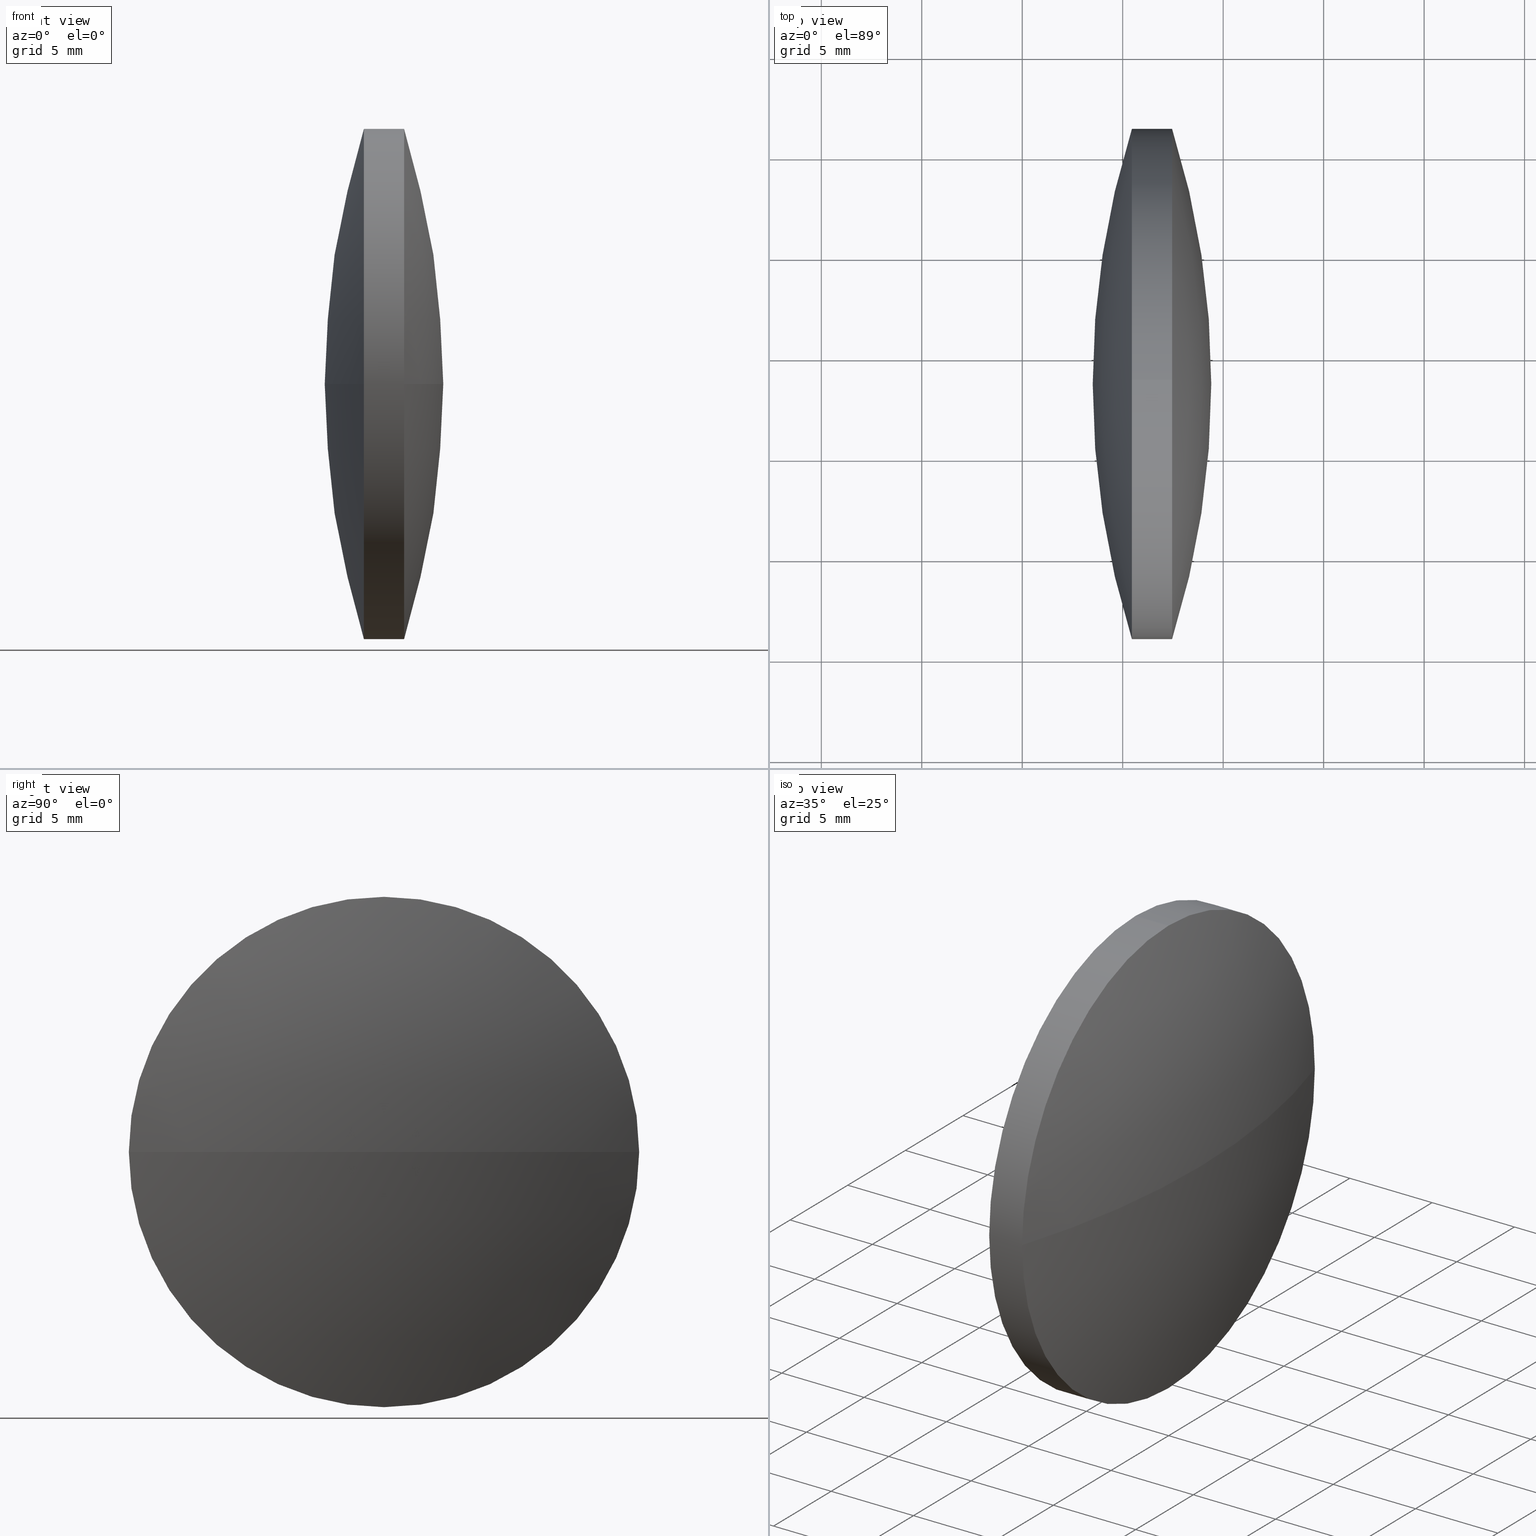
[diagram: canonical four-view strip — front | top / right | iso, engineering-drawing reading convention]
A machine part, canonical four-view strip (front | top / right | iso — engineering-drawing reading convention). The complete STEP part file that produces these views, byte-faithful:
ISO-10303-21;
HEADER;
FILE_DESCRIPTION (( 'STEP AP203' ),
    '1' );
FILE_NAME ('110140.STEP',
    '2019-07-08T09:12:02',
    ( '' ),
    ( '' ),
    'SwSTEP 2.0',
    'SolidWorks 2016',
    '' );
FILE_SCHEMA (( 'CONFIG_CONTROL_DESIGN' ));
ENDSEC;

DATA;
#1 = PERSON_AND_ORGANIZATION ( #110, #10 ) ;
#2 = PRODUCT_RELATED_PRODUCT_CATEGORY ( 'detail', '', ( #84 ) ) ;
#3 = COORDINATED_UNIVERSAL_TIME_OFFSET ( 8, 0, .AHEAD. ) ;
#4 = APPROVAL ( #77, 'δָ��' ) ;
#5 = DIRECTION ( 'NONE',  ( -0.0000000000000000000, 0.0000000000000000000, -1.000000000000000000 ) ) ;
#6 = VERTEX_POINT ( 'NONE', #331 ) ;
#7 = DIRECTION ( 'NONE',  ( -1.000000000000000000, -0.0000000000000000000, -0.0000000000000000000 ) ) ;
#8 = LOCAL_TIME ( 17, 12, 2.000000000000000000, #275 ) ;
#9 = MECHANICAL_CONTEXT ( 'NONE', #199, 'mechanical' ) ;
#10 = ORGANIZATION ( 'δָ��', 'δָ��', '' ) ;
#11 = APPROVAL ( #86, 'δָ��' ) ;
#12 = AXIS2_PLACEMENT_3D ( 'NONE', #31, #218, #34 ) ;
#13 = CARTESIAN_POINT ( 'NONE',  ( 87.45786520323396500, 48.61611302318478100, 0.0000000000000000000 ) ) ;
#14 = CARTESIAN_POINT ( 'NONE',  ( 85.45852234609111500, 35.91611302318477100, -1.555301434917135700E-015 ) ) ;
#15 = LOCAL_TIME ( 17, 12, 2.000000000000000000, #59 ) ;
#16 = CIRCLE ( 'NONE', #179, 12.69999999999999600 ) ;
#17 = DIRECTION ( 'NONE',  ( 0.0000000000000000000, 0.0000000000000000000, 1.000000000000000000 ) ) ;
#18 = CC_DESIGN_APPROVAL ( #152, ( #228 ) ) ;
#19 = LOCAL_TIME ( 17, 12, 2.000000000000000000, #51 ) ;
#20 = DIRECTION ( 'NONE',  ( -1.000000000000000000, -0.0000000000000000000, -0.0000000000000000000 ) ) ;
#21 = SPHERICAL_SURFACE ( 'NONE', #81, 42.32476693287840400 ) ;
#22 = ORIENTED_EDGE ( 'NONE', *, *, #204, .F. ) ;
#23 = PERSON_AND_ORGANIZATION_ROLE ( 'creator' ) ;
#24 = PERSON_AND_ORGANIZATION ( #110, #10 ) ;
#25 = PERSON_AND_ORGANIZATION ( #110, #10 ) ;
#26 = APPLICATION_CONTEXT ( 'configuration controlled 3d designs of mechanical parts and assemblies' ) ;
#27 = PRODUCT ( '110140', '110140', '', ( #9 ) ) ;
#28 = CC_DESIGN_APPROVAL ( #4, ( #66 ) ) ;
#29 = ADVANCED_FACE ( 'NONE', ( #241 ), #151, .T. ) ;
#30 = AXIS2_PLACEMENT_3D ( 'NONE', #170, #125, #259 ) ;
#31 = CARTESIAN_POINT ( 'NONE',  ( 125.8329684218269200, 48.61611302318474500, 0.0000000000000000000 ) ) ;
#32 = SPHERICAL_SURFACE ( 'NONE', #158, 42.32476693287866000 ) ;
#33 = CC_DESIGN_DATE_AND_TIME_ASSIGNMENT ( #195, #233, ( #120 ) ) ;
#34 = DIRECTION ( 'NONE',  ( 1.000000000000000000, 0.0000000000000000000, 0.0000000000000000000 ) ) ;
#35 = APPLICATION_PROTOCOL_DEFINITION ( 'international standard', 'config_control_design', 1994, #199 ) ;
#36 = ORIENTED_EDGE ( 'NONE', *, *, #184, .F. ) ;
#37 = AXIS2_PLACEMENT_3D ( 'NONE', #197, #43, #317 ) ;
#38 =( NAMED_UNIT ( * ) SI_UNIT ( $, .STERADIAN. ) SOLID_ANGLE_UNIT ( ) );
#39 = CARTESIAN_POINT ( 'NONE',  ( 79.30540135083715800, 48.61611302318478100, 0.0000000000000000000 ) ) ;
#40 = DATE_AND_TIME ( #304, #99 ) ;
#41 = CARTESIAN_POINT ( 'NONE',  ( 85.45852234609111500, 48.61611302318478100, 0.0000000000000000000 ) ) ;
#42 = DIRECTION ( 'NONE',  ( 0.0000000000000000000, 0.0000000000000000000, 1.000000000000000000 ) ) ;
#43 = DIRECTION ( 'NONE',  ( -1.000000000000000000, -0.0000000000000000000, -0.0000000000000000000 ) ) ;
#44 = LOCAL_TIME ( 17, 12, 2.000000000000000000, #136 ) ;
#45 = PERSON_AND_ORGANIZATION_ROLE ( 'creator' ) ;
#46 = CC_DESIGN_APPROVAL ( #11, ( #302 ) ) ;
#47 = APPROVAL_DATE_TIME ( #40, #60 ) ;
#48 = CIRCLE ( 'NONE', #223, 12.69999999999999600 ) ;
#49 = AXIS2_PLACEMENT_3D ( 'NONE', #191, #255, #229 ) ;
#50 = VERTEX_POINT ( 'NONE', #161 ) ;
#51 = COORDINATED_UNIVERSAL_TIME_OFFSET ( 8, 0, .AHEAD. ) ;
#52 = LOCAL_TIME ( 17, 12, 2.000000000000000000, #341 ) ;
#53 = CARTESIAN_POINT ( 'NONE',  ( 0.0000000000000000000, 0.0000000000000000000, 0.0000000000000000000 ) ) ;
#54 = ADVANCED_FACE ( 'NONE', ( #126 ), #308, .T. ) ;
#55 = CIRCLE ( 'NONE', #140, 12.69999999999999600 ) ;
#56 = PERSON_AND_ORGANIZATION ( #110, #10 ) ;
#57 = EDGE_LOOP ( 'NONE', ( #93, #127, #115, #148, #237, #267 ) ) ;
#58 = DIRECTION ( 'NONE',  ( 0.0000000000000000000, 1.000000000000000000, 0.0000000000000000000 ) ) ;
#59 = COORDINATED_UNIVERSAL_TIME_OFFSET ( 8, 0, .AHEAD. ) ;
#60 = APPROVAL ( #130, 'δָ��' ) ;
#61 = EDGE_LOOP ( 'NONE', ( #210, #290, #232, #212 ) ) ;
#62 = DIRECTION ( 'NONE',  ( 1.000000000000000000, 0.0000000000000000000, 0.0000000000000000000 ) ) ;
#63 = PERSON_AND_ORGANIZATION ( #110, #10 ) ;
#64 = FACE_OUTER_BOUND ( 'NONE', #129, .T. ) ;
#65 = VERTEX_POINT ( 'NONE', #246 ) ;
#66 = PRODUCT_DEFINITION_FORMATION_WITH_SPECIFIED_SOURCE ( '�κ�', '', #84, .NOT_KNOWN. ) ;
#67 = DIRECTION ( 'NONE',  ( -1.000000000000000000, -0.0000000000000000000, -0.0000000000000000000 ) ) ;
#68 = DIRECTION ( 'NONE',  ( 0.0000000000000000000, 1.000000000000000000, 1.224646799147353500E-016 ) ) ;
#69 = APPLICATION_PROTOCOL_DEFINITION ( 'international standard', 'config_control_design', 1994, #149 ) ;
#70 = CALENDAR_DATE ( 2019, 8, 7 ) ;
#71 = APPLICATION_CONTEXT ( 'configuration controlled 3d designs of mechanical parts and assemblies' ) ;
#72 = EDGE_CURVE ( 'NONE', #65, #101, #192, .T. ) ;
#73 = PRODUCT_DEFINITION_SHAPE ( 'NONE', 'NONE',  #228 ) ;
#74 = VERTEX_POINT ( 'NONE', #14 ) ;
#75 = CARTESIAN_POINT ( 'NONE',  ( 125.8329684218269200, 48.61611302318474500, 0.0000000000000000000 ) ) ;
#76 = APPROVAL_PERSON_ORGANIZATION ( #260, #340, #175 ) ;
#77 = APPROVAL_STATUS ( 'not_yet_approved' ) ;
#78 = CC_DESIGN_DATE_AND_TIME_ASSIGNMENT ( #291, #154, ( #332 ) ) ;
#79 = SECURITY_CLASSIFICATION_LEVEL ( 'unclassified' ) ;
#80 = CALENDAR_DATE ( 2019, 8, 7 ) ;
#81 = AXIS2_PLACEMENT_3D ( 'NONE', #250, #257, #133 ) ;
#82 = CLOSED_SHELL ( 'NONE', ( #157, #327, #182, #242, #29, #54 ) ) ;
#83 =( LENGTH_UNIT ( ) NAMED_UNIT ( * ) SI_UNIT ( .MILLI., .METRE. ) );
#84 = PRODUCT ( '110140', '110140', '', ( #254 ) ) ;
#85 = ORIENTED_EDGE ( 'NONE', *, *, #226, .T. ) ;
#86 = APPROVAL_STATUS ( 'not_yet_approved' ) ;
#87 = LOCAL_TIME ( 17, 12, 2.000000000000000000, #280 ) ;
#88 = PRODUCT_DEFINITION_SHAPE ( 'NONE', 'NONE',  #120 ) ;
#89 = FACE_OUTER_BOUND ( 'NONE', #90, .T. ) ;
#90 = EDGE_LOOP ( 'NONE', ( #216, #278, #22, #183 ) ) ;
#91 = CIRCLE ( 'NONE', #12, 42.32476693287864600 ) ;
#92 = CARTESIAN_POINT ( 'NONE',  ( 85.45852234609111500, 48.61611302318478100, 12.69999999999999600 ) ) ;
#93 = ORIENTED_EDGE ( 'NONE', *, *, #286, .F. ) ;
#94 = CARTESIAN_POINT ( 'NONE',  ( 87.45786520323396500, 61.31611302318477600, 0.0000000000000000000 ) ) ;
#95 = DIRECTION ( 'NONE',  ( 0.0000000000000000000, 0.0000000000000000000, 1.000000000000000000 ) ) ;
#96 = APPROVAL_PERSON_ORGANIZATION ( #214, #293, #289 ) ;
#97 = SHAPE_DEFINITION_REPRESENTATION ( #73, #206 ) ;
#98 = PERSON_AND_ORGANIZATION_ROLE ( 'design_owner' ) ;
#99 = LOCAL_TIME ( 17, 12, 2.000000000000000000, #239 ) ;
#100 = CYLINDRICAL_SURFACE ( 'NONE', #318, 12.69999999999999600 ) ;
#101 = VERTEX_POINT ( 'NONE', #94 ) ;
#102 = PERSON_AND_ORGANIZATION_ROLE ( 'classification_officer' ) ;
#103 = COORDINATED_UNIVERSAL_TIME_OFFSET ( 8, 0, .AHEAD. ) ;
#104 = APPLICATION_PROTOCOL_DEFINITION ( 'international standard', 'config_control_design', 1994, #26 ) ;
#105 = CC_DESIGN_APPROVAL ( #293, ( #244 ) ) ;
#106 = APPROVAL_PERSON_ORGANIZATION ( #311, #60, #324 ) ;
#107 = ORIENTED_EDGE ( 'NONE', *, *, #131, .F. ) ;
#108 = COORDINATED_UNIVERSAL_TIME_OFFSET ( 8, 0, .AHEAD. ) ;
#109 = EDGE_CURVE ( 'NONE', #224, #193, #55, .T. ) ;
#110 = PERSON ( 'δָ��', 'δָ��', 'δָ��', ('δָ��'), ('δָ��'), ('δָ��') ) ;
#111 =( NAMED_UNIT ( * ) PLANE_ANGLE_UNIT ( ) SI_UNIT ( $, .RADIAN. ) );
#112 = CC_DESIGN_PERSON_AND_ORGANIZATION_ASSIGNMENT ( #123, #264, ( #66 ) ) ;
#113 = CARTESIAN_POINT ( 'NONE',  ( 87.45786520323396500, 48.61611302318478100, 0.0000000000000000000 ) ) ;
#114 = PERSON_AND_ORGANIZATION ( #110, #10 ) ;
#115 = ORIENTED_EDGE ( 'NONE', *, *, #219, .T. ) ;
#116 = CARTESIAN_POINT ( 'NONE',  ( 85.45852234609111500, 48.61611302318478100, -12.69999999999999600 ) ) ;
#117 = CARTESIAN_POINT ( 'NONE',  ( 85.45852234609111500, 48.61611302318478100, 0.0000000000000000000 ) ) ;
#118 = PERSON_AND_ORGANIZATION ( #110, #10 ) ;
#119 = DESIGN_CONTEXT ( 'detailed design', #71, 'design' ) ;
#120 = PRODUCT_DEFINITION ( 'δ֪', '', #66, #173 ) ;
#121 = DIRECTION ( 'NONE',  ( -1.000000000000000000, -0.0000000000000000000, -0.0000000000000000000 ) ) ;
#122 = EDGE_CURVE ( 'NONE', #187, #224, #16, .T. ) ;
#123 = PERSON_AND_ORGANIZATION ( #110, #10 ) ;
#124 = PERSON_AND_ORGANIZATION_ROLE ( 'design_owner' ) ;
#125 = DIRECTION ( 'NONE',  ( -0.0000000000000000000, 0.0000000000000000000, 1.000000000000000000 ) ) ;
#126 = FACE_OUTER_BOUND ( 'NONE', #57, .T. ) ;
#127 = ORIENTED_EDGE ( 'NONE', *, *, #204, .T. ) ;
#128 = LOCAL_TIME ( 17, 12, 2.000000000000000000, #103 ) ;
#129 = EDGE_LOOP ( 'NONE', ( #338, #306, #137, #285 ) ) ;
#130 = APPROVAL_STATUS ( 'not_yet_approved' ) ;
#131 = EDGE_CURVE ( 'NONE', #135, #50, #150, .T. ) ;
#132 = PERSON_AND_ORGANIZATION ( #110, #10 ) ;
#133 = DIRECTION ( 'NONE',  ( 0.0000000000000000000, 1.000000000000000000, 0.0000000000000000000 ) ) ;
#134 = CARTESIAN_POINT ( 'NONE',  ( 85.45852234609111500, 61.31611302318476200, 0.0000000000000000000 ) ) ;
#135 = VERTEX_POINT ( 'NONE', #144 ) ;
#136 = COORDINATED_UNIVERSAL_TIME_OFFSET ( 8, 0, .AHEAD. ) ;
#137 = ORIENTED_EDGE ( 'NONE', *, *, #122, .T. ) ;
#138 = AXIS2_PLACEMENT_3D ( 'NONE', #213, #276, #62 ) ;
#139 = CALENDAR_DATE ( 2019, 8, 7 ) ;
#140 = AXIS2_PLACEMENT_3D ( 'NONE', #117, #252, #168 ) ;
#141 = ORIENTED_EDGE ( 'NONE', *, *, #219, .F. ) ;
#142 = DIRECTION ( 'NONE',  ( -1.000000000000000000, -0.0000000000000000000, -0.0000000000000000000 ) ) ;
#143 = DATE_AND_TIME ( #70, #87 ) ;
#144 = CARTESIAN_POINT ( 'NONE',  ( 89.40818606037683500, 48.61611302318478100, 0.0000000000000000000 ) ) ;
#145 = SPHERICAL_SURFACE ( 'NONE', #49, 42.32476693287866000 ) ;
#146 = DIRECTION ( 'NONE',  ( -1.000000000000000000, -0.0000000000000000000, -0.0000000000000000000 ) ) ;
#147 = AXIS2_PLACEMENT_3D ( 'NONE', #53, #42, #172 ) ;
#148 = ORIENTED_EDGE ( 'NONE', *, *, #184, .T. ) ;
#149 = APPLICATION_CONTEXT ( 'configuration controlled 3d designs of mechanical parts and assemblies' ) ;
#150 = CIRCLE ( 'NONE', #236, 42.32476693287840400 ) ;
#151 = SPHERICAL_SURFACE ( 'NONE', #198, 42.32476693287840400 ) ;
#152 = APPROVAL ( #339, 'δָ��' ) ;
#153 = APPROVAL_STATUS ( 'not_yet_approved' ) ;
#154 = DATE_TIME_ROLE ( 'classification_date' ) ;
#155 = DATE_AND_TIME ( #201, #128 ) ;
#156 = CC_DESIGN_PERSON_AND_ORGANIZATION_ASSIGNMENT ( #114, #319, ( #302 ) ) ;
#157 = ADVANCED_FACE ( 'NONE', ( #265 ), #100, .T. ) ;
#158 = AXIS2_PLACEMENT_3D ( 'NONE', #75, #5, #307 ) ;
#159 = VECTOR ( 'NONE', #20, 1000.000000000000000 ) ;
#160 = CC_DESIGN_DATE_AND_TIME_ASSIGNMENT ( #180, #202, ( #228 ) ) ;
#161 = CARTESIAN_POINT ( 'NONE',  ( 87.45786520323396500, 35.91611302318478500, -1.555301434917138400E-015 ) ) ;
#162 = DATE_AND_TIME ( #235, #185 ) ;
#163 = CC_DESIGN_APPROVAL ( #340, ( #120 ) ) ;
#164 = EDGE_CURVE ( 'NONE', #74, #321, #190, .T. ) ;
#165 = EDGE_LOOP ( 'NONE', ( #85, #272, #320, #203, #36, #221 ) ) ;
#166 = EDGE_CURVE ( 'NONE', #193, #74, #288, .T. ) ;
#167 = APPROVAL_DATE_TIME ( #155, #11 ) ;
#168 = DIRECTION ( 'NONE',  ( 0.0000000000000000000, 0.0000000000000000000, 1.000000000000000000 ) ) ;
#169 = APPROVAL_ROLE ( '' ) ;
#170 = CARTESIAN_POINT ( 'NONE',  ( 47.08341912749842400, 48.61611302318478100, 0.0000000000000000000 ) ) ;
#171 = CC_DESIGN_PERSON_AND_ORGANIZATION_ASSIGNMENT ( #118, #23, ( #120 ) ) ;
#172 = DIRECTION ( 'NONE',  ( 1.000000000000000000, 0.0000000000000000000, 0.0000000000000000000 ) ) ;
#173 = DESIGN_CONTEXT ( 'detailed design', #26, 'design' ) ;
#174 = CARTESIAN_POINT ( 'NONE',  ( 125.8329684218269200, 48.61611302318474500, 0.0000000000000000000 ) ) ;
#175 = APPROVAL_ROLE ( '' ) ;
#176 = CC_DESIGN_PERSON_AND_ORGANIZATION_ASSIGNMENT ( #24, #313, ( #244 ) ) ;
#177 = APPROVAL_PERSON_ORGANIZATION ( #63, #152, #169 ) ;
#178 = APPROVAL_ROLE ( '' ) ;
#179 = AXIS2_PLACEMENT_3D ( 'NONE', #225, #142, #283 ) ;
#180 = DATE_AND_TIME ( #287, #335 ) ;
#181 = CC_DESIGN_PERSON_AND_ORGANIZATION_ASSIGNMENT ( #298, #208, ( #244 ) ) ;
#182 = ADVANCED_FACE ( 'NONE', ( #215 ), #32, .T. ) ;
#183 = ORIENTED_EDGE ( 'NONE', *, *, #226, .F. ) ;
#184 = EDGE_CURVE ( 'NONE', #65, #187, #247, .T. ) ;
#185 = LOCAL_TIME ( 17, 12, 2.000000000000000000, #3 ) ;
#186 = VECTOR ( 'NONE', #310, 1000.000000000000000 ) ;
#187 = VERTEX_POINT ( 'NONE', #92 ) ;
#188 = CC_DESIGN_DATE_AND_TIME_ASSIGNMENT ( #207, #330, ( #302 ) ) ;
#189 = CALENDAR_DATE ( 2019, 8, 7 ) ;
#190 = CIRCLE ( 'NONE', #253, 42.32476693287866000 ) ;
#191 = CARTESIAN_POINT ( 'NONE',  ( 125.8329684218269200, 48.61611302318474500, 0.0000000000000000000 ) ) ;
#192 = CIRCLE ( 'NONE', #230, 12.69999999999999600 ) ;
#193 = VERTEX_POINT ( 'NONE', #116 ) ;
#194 = DIRECTION ( 'NONE',  ( 0.0000000000000000000, 1.224646799147353200E-016, -1.000000000000000000 ) ) ;
#195 = DATE_AND_TIME ( #80, #44 ) ;
#196 = CIRCLE ( 'NONE', #30, 42.32476693287840400 ) ;
#197 = CARTESIAN_POINT ( 'NONE',  ( 87.45786520323396500, 48.61611302318478100, 0.0000000000000000000 ) ) ;
#198 = AXIS2_PLACEMENT_3D ( 'NONE', #217, #299, #58 ) ;
#199 = APPLICATION_CONTEXT ( 'configuration controlled 3d designs of mechanical parts and assemblies' ) ;
#200 = CARTESIAN_POINT ( 'NONE',  ( 83.50820148894825900, 48.61611302318474500, 0.0000000000000000000 ) ) ;
#201 = CALENDAR_DATE ( 2019, 8, 7 ) ;
#202 = DATE_TIME_ROLE ( 'creation_date' ) ;
#203 = ORIENTED_EDGE ( 'NONE', *, *, #122, .F. ) ;
#204 = EDGE_CURVE ( 'NONE', #6, #50, #231, .T. ) ;
#205 = DIRECTION ( 'NONE',  ( 0.0000000000000000000, 1.224646799147353200E-016, -1.000000000000000000 ) ) ;
#206 = ADVANCED_BREP_SHAPE_REPRESENTATION ( '110140', ( #297, #138 ), #238 ) ;
#207 = DATE_AND_TIME ( #189, #8 ) ;
#208 = PERSON_AND_ORGANIZATION_ROLE ( 'design_supplier' ) ;
#209 = EDGE_CURVE ( 'NONE', #224, #321, #91, .T. ) ;
#210 = ORIENTED_EDGE ( 'NONE', *, *, #109, .T. ) ;
#211 = PERSON_AND_ORGANIZATION ( #110, #10 ) ;
#212 = ORIENTED_EDGE ( 'NONE', *, *, #209, .F. ) ;
#213 = CARTESIAN_POINT ( 'NONE',  ( 0.0000000000000000000, 0.0000000000000000000, 0.0000000000000000000 ) ) ;
#214 = PERSON_AND_ORGANIZATION ( #110, #10 ) ;
#215 = FACE_OUTER_BOUND ( 'NONE', #61, .T. ) ;
#216 = ORIENTED_EDGE ( 'NONE', *, *, #245, .F. ) ;
#217 = CARTESIAN_POINT ( 'NONE',  ( 47.08341912749842400, 48.61611302318478100, 0.0000000000000000000 ) ) ;
#218 = DIRECTION ( 'NONE',  ( -0.0000000000000000000, 0.0000000000000000000, 1.000000000000000000 ) ) ;
#219 = EDGE_CURVE ( 'NONE', #50, #65, #281, .T. ) ;
#220 = CALENDAR_DATE ( 2019, 8, 7 ) ;
#221 = ORIENTED_EDGE ( 'NONE', *, *, #72, .T. ) ;
#222 = CARTESIAN_POINT ( 'NONE',  ( 79.30540135083715800, 48.61611302318478100, 0.0000000000000000000 ) ) ;
#223 = AXIS2_PLACEMENT_3D ( 'NONE', #274, #295, #296 ) ;
#224 = VERTEX_POINT ( 'NONE', #134 ) ;
#225 = CARTESIAN_POINT ( 'NONE',  ( 85.45852234609111500, 48.61611302318478100, 0.0000000000000000000 ) ) ;
#226 = EDGE_CURVE ( 'NONE', #101, #6, #270, .T. ) ;
#227 = CALENDAR_DATE ( 2019, 8, 7 ) ;
#228 = PRODUCT_DEFINITION ( 'δ֪', '', #244, #119 ) ;
#229 = DIRECTION ( 'NONE',  ( 0.0000000000000000000, 1.000000000000000000, 0.0000000000000000000 ) ) ;
#230 = AXIS2_PLACEMENT_3D ( 'NONE', #13, #121, #249 ) ;
#231 = CIRCLE ( 'NONE', #37, 12.69999999999999600 ) ;
#232 = ORIENTED_EDGE ( 'NONE', *, *, #164, .T. ) ;
#233 = DATE_TIME_ROLE ( 'creation_date' ) ;
#234 = CC_DESIGN_APPROVAL ( #60, ( #332 ) ) ;
#235 = CALENDAR_DATE ( 2019, 8, 7 ) ;
#236 = AXIS2_PLACEMENT_3D ( 'NONE', #336, #194, #334 ) ;
#237 = ORIENTED_EDGE ( 'NONE', *, *, #337, .F. ) ;
#238 =( GEOMETRIC_REPRESENTATION_CONTEXT ( 3 ) GLOBAL_UNCERTAINTY_ASSIGNED_CONTEXT ( ( #315 ) ) GLOBAL_UNIT_ASSIGNED_CONTEXT ( ( #83, #111, #38 ) ) REPRESENTATION_CONTEXT ( 'NONE', 'WORKASPACE' ) );
#239 = COORDINATED_UNIVERSAL_TIME_OFFSET ( 8, 0, .AHEAD. ) ;
#240 = SECURITY_CLASSIFICATION_LEVEL ( 'unclassified' ) ;
#241 = FACE_OUTER_BOUND ( 'NONE', #344, .T. ) ;
#242 = ADVANCED_FACE ( 'NONE', ( #64 ), #145, .T. ) ;
#243 = APPROVAL_DATE_TIME ( #269, #152 ) ;
#244 = PRODUCT_DEFINITION_FORMATION_WITH_SPECIFIED_SOURCE ( '�κ�', '', #27, .NOT_KNOWN. ) ;
#245 = EDGE_CURVE ( 'NONE', #135, #101, #196, .T. ) ;
#246 = CARTESIAN_POINT ( 'NONE',  ( 87.45786520323396500, 48.61611302318478100, 12.69999999999999600 ) ) ;
#247 = LINE ( 'NONE', #333, #159 ) ;
#248 = DIRECTION ( 'NONE',  ( 0.0000000000000000000, 0.0000000000000000000, 1.000000000000000000 ) ) ;
#249 = DIRECTION ( 'NONE',  ( 0.0000000000000000000, 0.0000000000000000000, 1.000000000000000000 ) ) ;
#250 = CARTESIAN_POINT ( 'NONE',  ( 47.08341912749842400, 48.61611302318478100, 0.0000000000000000000 ) ) ;
#251 = APPROVAL_DATE_TIME ( #143, #4 ) ;
#252 = DIRECTION ( 'NONE',  ( -1.000000000000000000, -0.0000000000000000000, -0.0000000000000000000 ) ) ;
#253 = AXIS2_PLACEMENT_3D ( 'NONE', #174, #205, #68 ) ;
#254 = MECHANICAL_CONTEXT ( 'NONE', #149, 'mechanical' ) ;
#255 = DIRECTION ( 'NONE',  ( -0.0000000000000000000, 0.0000000000000000000, -1.000000000000000000 ) ) ;
#256 = CC_DESIGN_PERSON_AND_ORGANIZATION_ASSIGNMENT ( #1, #322, ( #66 ) ) ;
#257 = DIRECTION ( 'NONE',  ( -0.0000000000000000000, 0.0000000000000000000, -1.000000000000000000 ) ) ;
#258 = PRODUCT_RELATED_PRODUCT_CATEGORY ( 'detail', '', ( #27 ) ) ;
#259 = DIRECTION ( 'NONE',  ( 1.000000000000000000, 0.0000000000000000000, 0.0000000000000000000 ) ) ;
#260 = PERSON_AND_ORGANIZATION ( #110, #10 ) ;
#261 = ORIENTED_EDGE ( 'NONE', *, *, #245, .T. ) ;
#262 = CC_DESIGN_PERSON_AND_ORGANIZATION_ASSIGNMENT ( #132, #102, ( #332 ) ) ;
#263 = APPROVAL_DATE_TIME ( #162, #293 ) ;
#264 = PERSON_AND_ORGANIZATION_ROLE ( 'design_supplier' ) ;
#265 = FACE_OUTER_BOUND ( 'NONE', #165, .T. ) ;
#266 = AXIS2_PLACEMENT_3D ( 'NONE', #268, #323, #248 ) ;
#267 = ORIENTED_EDGE ( 'NONE', *, *, #166, .F. ) ;
#268 = CARTESIAN_POINT ( 'NONE',  ( 87.45786520323396500, 48.61611302318478100, 0.0000000000000000000 ) ) ;
#269 = DATE_AND_TIME ( #220, #15 ) ;
#270 = CIRCLE ( 'NONE', #303, 12.69999999999999600 ) ;
#271 = ORIENTED_EDGE ( 'NONE', *, *, #72, .F. ) ;
#272 = ORIENTED_EDGE ( 'NONE', *, *, #286, .T. ) ;
#273 = DIRECTION ( 'NONE',  ( -1.000000000000000000, -0.0000000000000000000, -0.0000000000000000000 ) ) ;
#274 = CARTESIAN_POINT ( 'NONE',  ( 85.45852234609111500, 48.61611302318478100, 0.0000000000000000000 ) ) ;
#275 = COORDINATED_UNIVERSAL_TIME_OFFSET ( 8, 0, .AHEAD. ) ;
#276 = DIRECTION ( 'NONE',  ( 0.0000000000000000000, 0.0000000000000000000, 1.000000000000000000 ) ) ;
#277 = CC_DESIGN_SECURITY_CLASSIFICATION ( #302, ( #66 ) ) ;
#278 = ORIENTED_EDGE ( 'NONE', *, *, #131, .T. ) ;
#279 = CC_DESIGN_PERSON_AND_ORGANIZATION_ASSIGNMENT ( #25, #124, ( #27 ) ) ;
#280 = COORDINATED_UNIVERSAL_TIME_OFFSET ( 8, 0, .AHEAD. ) ;
#281 = CIRCLE ( 'NONE', #266, 12.69999999999999600 ) ;
#282 = CARTESIAN_POINT ( 'NONE',  ( 79.30540135083715800, 48.61611302318478100, -12.69999999999999600 ) ) ;
#283 = DIRECTION ( 'NONE',  ( 0.0000000000000000000, 0.0000000000000000000, 1.000000000000000000 ) ) ;
#284 = PERSON_AND_ORGANIZATION ( #110, #10 ) ;
#285 = ORIENTED_EDGE ( 'NONE', *, *, #209, .T. ) ;
#286 = EDGE_CURVE ( 'NONE', #6, #193, #343, .T. ) ;
#287 = CALENDAR_DATE ( 2019, 8, 7 ) ;
#288 = CIRCLE ( 'NONE', #292, 12.69999999999999600 ) ;
#289 = APPROVAL_ROLE ( '' ) ;
#290 = ORIENTED_EDGE ( 'NONE', *, *, #166, .T. ) ;
#291 = DATE_AND_TIME ( #227, #52 ) ;
#292 = AXIS2_PLACEMENT_3D ( 'NONE', #41, #146, #17 ) ;
#293 = APPROVAL ( #345, 'δָ��' ) ;
#294 = CC_DESIGN_PERSON_AND_ORGANIZATION_ASSIGNMENT ( #56, #45, ( #228 ) ) ;
#295 = DIRECTION ( 'NONE',  ( -1.000000000000000000, -0.0000000000000000000, -0.0000000000000000000 ) ) ;
#296 = DIRECTION ( 'NONE',  ( 0.0000000000000000000, 0.0000000000000000000, 1.000000000000000000 ) ) ;
#297 = MANIFOLD_SOLID_BREP ( '��ת1', #82 ) ;
#298 = PERSON_AND_ORGANIZATION ( #110, #10 ) ;
#299 = DIRECTION ( 'NONE',  ( -0.0000000000000000000, 0.0000000000000000000, -1.000000000000000000 ) ) ;
#300 = APPROVAL_ROLE ( '' ) ;
#301 = DIRECTION ( 'NONE',  ( 0.0000000000000000000, 0.0000000000000000000, 1.000000000000000000 ) ) ;
#302 = SECURITY_CLASSIFICATION ( '', '', #240 ) ;
#303 = AXIS2_PLACEMENT_3D ( 'NONE', #113, #7, #305 ) ;
#304 = CALENDAR_DATE ( 2019, 8, 7 ) ;
#305 = DIRECTION ( 'NONE',  ( 0.0000000000000000000, 0.0000000000000000000, 1.000000000000000000 ) ) ;
#306 = ORIENTED_EDGE ( 'NONE', *, *, #337, .T. ) ;
#307 = DIRECTION ( 'NONE',  ( 0.0000000000000000000, 1.000000000000000000, 0.0000000000000000000 ) ) ;
#308 = CYLINDRICAL_SURFACE ( 'NONE', #328, 12.69999999999999600 ) ;
#309 = APPLICATION_PROTOCOL_DEFINITION ( 'international standard', 'config_control_design', 1994, #71 ) ;
#310 = DIRECTION ( 'NONE',  ( -1.000000000000000000, -0.0000000000000000000, -0.0000000000000000000 ) ) ;
#311 = PERSON_AND_ORGANIZATION ( #110, #10 ) ;
#312 = CC_DESIGN_SECURITY_CLASSIFICATION ( #332, ( #244 ) ) ;
#313 = PERSON_AND_ORGANIZATION_ROLE ( 'creator' ) ;
#314 = APPROVAL_PERSON_ORGANIZATION ( #284, #4, #178 ) ;
#315 = UNCERTAINTY_MEASURE_WITH_UNIT (LENGTH_MEASURE( 1.000000000000000100E-005 ), #83, 'distance_accuracy_value', 'NONE');
#316 = CC_DESIGN_PERSON_AND_ORGANIZATION_ASSIGNMENT ( #326, #98, ( #84 ) ) ;
#317 = DIRECTION ( 'NONE',  ( 0.0000000000000000000, 0.0000000000000000000, 1.000000000000000000 ) ) ;
#318 = AXIS2_PLACEMENT_3D ( 'NONE', #222, #67, #95 ) ;
#319 = PERSON_AND_ORGANIZATION_ROLE ( 'classification_officer' ) ;
#320 = ORIENTED_EDGE ( 'NONE', *, *, #109, .F. ) ;
#321 = VERTEX_POINT ( 'NONE', #200 ) ;
#322 = PERSON_AND_ORGANIZATION_ROLE ( 'creator' ) ;
#323 = DIRECTION ( 'NONE',  ( -1.000000000000000000, -0.0000000000000000000, -0.0000000000000000000 ) ) ;
#324 = APPROVAL_ROLE ( '' ) ;
#325 = DATE_AND_TIME ( #139, #19 ) ;
#326 = PERSON_AND_ORGANIZATION ( #110, #10 ) ;
#327 = ADVANCED_FACE ( 'NONE', ( #89 ), #21, .T. ) ;
#328 = AXIS2_PLACEMENT_3D ( 'NONE', #39, #273, #301 ) ;
#329 = APPROVAL_DATE_TIME ( #325, #340 ) ;
#330 = DATE_TIME_ROLE ( 'classification_date' ) ;
#331 = CARTESIAN_POINT ( 'NONE',  ( 87.45786520323396500, 48.61611302318478100, -12.69999999999999600 ) ) ;
#332 = SECURITY_CLASSIFICATION ( '', '', #79 ) ;
#333 = CARTESIAN_POINT ( 'NONE',  ( 79.30540135083715800, 48.61611302318478100, 12.69999999999999600 ) ) ;
#334 = DIRECTION ( 'NONE',  ( 0.0000000000000000000, 1.000000000000000000, 1.224646799147353500E-016 ) ) ;
#335 = LOCAL_TIME ( 17, 12, 2.000000000000000000, #108 ) ;
#336 = CARTESIAN_POINT ( 'NONE',  ( 47.08341912749842400, 48.61611302318478100, 0.0000000000000000000 ) ) ;
#337 = EDGE_CURVE ( 'NONE', #74, #187, #48, .T. ) ;
#338 = ORIENTED_EDGE ( 'NONE', *, *, #164, .F. ) ;
#339 = APPROVAL_STATUS ( 'not_yet_approved' ) ;
#340 = APPROVAL ( #153, 'δָ��' ) ;
#341 = COORDINATED_UNIVERSAL_TIME_OFFSET ( 8, 0, .AHEAD. ) ;
#342 = APPROVAL_PERSON_ORGANIZATION ( #211, #11, #300 ) ;
#343 = LINE ( 'NONE', #282, #186 ) ;
#344 = EDGE_LOOP ( 'NONE', ( #107, #261, #271, #141 ) ) ;
#345 = APPROVAL_STATUS ( 'not_yet_approved' ) ;
ENDSEC;
END-ISO-10303-21;
